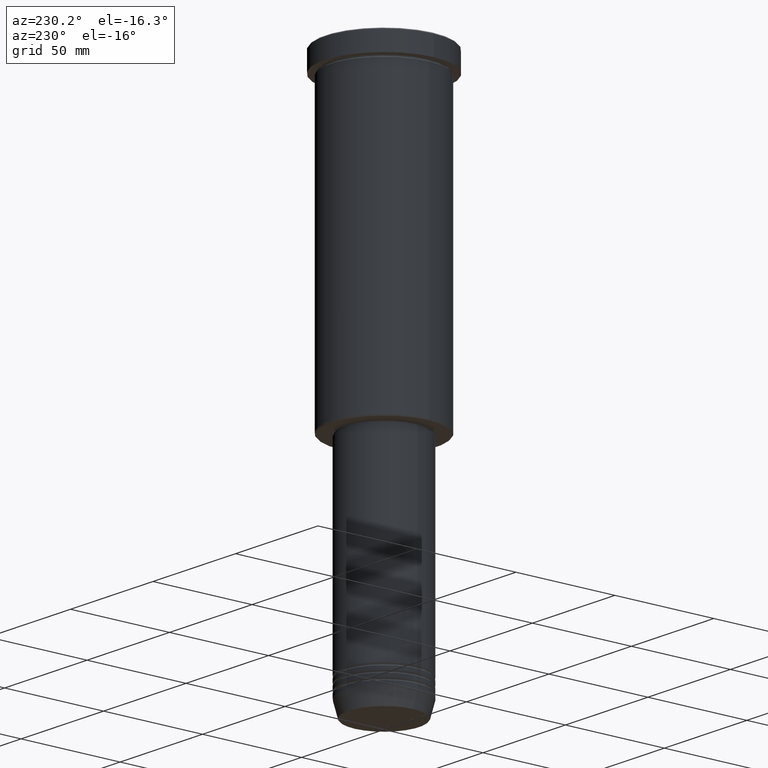
[diagram: clean part render]
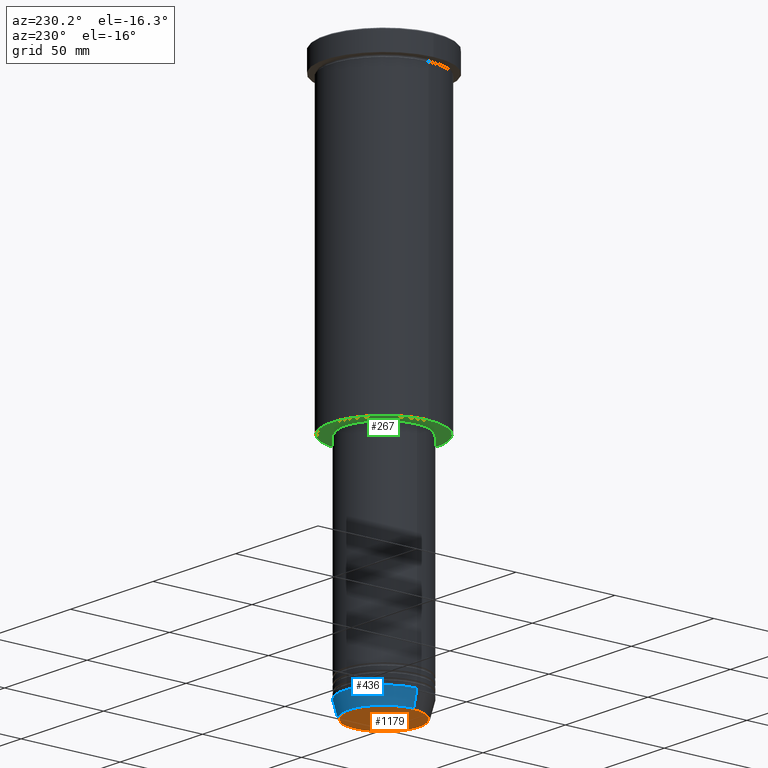
[diagram: same view with three faces highlighted in distinct colors, each labeled with its STEP entity id]
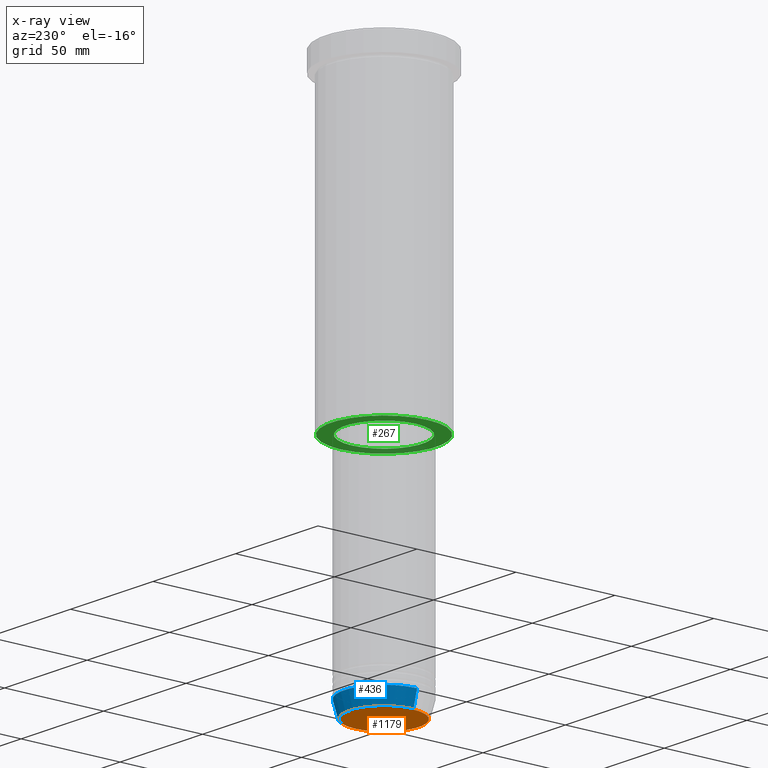
[diagram: x-ray of the same camera — body ghosted, the three highlighted faces saturated]
A machine part, auxiliary view with three faces highlighted in distinct colors.
The next image is the same camera in x-ray (body ghosted, the three faces saturated) — at least one of them is partly hidden behind the body in this view.
Their STEP definitions:

[orange] entity #1179 — the highlighted planar face has unit normal (0, -0, 1).
#90 = AXIS2_PLACEMENT_3D ( 'NONE', #326, #1053, #852 ) ;
#104 = AXIS2_PLACEMENT_3D ( 'NONE', #774, #793, #246 ) ;
#122 = CIRCLE ( 'NONE', #104, 17.47274296656153325 ) ;
#219 = CARTESIAN_POINT ( 'NONE',  ( 17.47274296656153325, 0.000000000000000000, -271.0000000000000000 ) ) ;
#246 = DIRECTION ( 'NONE',  ( 1.000000000000000000, 0.000000000000000000, 0.000000000000000000 ) ) ;
#274 = CIRCLE ( 'NONE', #1013, 17.47274296656153325 ) ;
#295 = EDGE_LOOP ( 'NONE', ( #509, #588 ) ) ;
#320 = FACE_OUTER_BOUND ( 'NONE', #295, .T. ) ;
#326 = CARTESIAN_POINT ( 'NONE',  ( 0.000000000000000000, 0.000000000000000000, -271.0000000000000000 ) ) ;
#340 = EDGE_CURVE ( 'NONE', #1100, #818, #122, .T. ) ;
#430 = EDGE_CURVE ( 'NONE', #818, #1100, #274, .T. ) ;
#509 = ORIENTED_EDGE ( 'NONE', *, *, #430, .T. ) ;
#579 = PLANE ( 'NONE',  #90 ) ;
#588 = ORIENTED_EDGE ( 'NONE', *, *, #340, .T. ) ;
#635 = DIRECTION ( 'NONE',  ( 0.000000000000000000, 0.000000000000000000, -1.000000000000000000 ) ) ;
#774 = CARTESIAN_POINT ( 'NONE',  ( 0.000000000000000000, 0.000000000000000000, -271.0000000000000000 ) ) ;
#793 = DIRECTION ( 'NONE',  ( 0.000000000000000000, 0.000000000000000000, -1.000000000000000000 ) ) ;
#818 = VERTEX_POINT ( 'NONE', #219 ) ;
#852 = DIRECTION ( 'NONE',  ( 1.000000000000000000, 0.000000000000000000, 0.000000000000000000 ) ) ;
#894 = DIRECTION ( 'NONE',  ( 1.000000000000000000, 0.000000000000000000, 0.000000000000000000 ) ) ;
#966 = CARTESIAN_POINT ( 'NONE',  ( 0.000000000000000000, 0.000000000000000000, -271.0000000000000000 ) ) ;
#1011 = CARTESIAN_POINT ( 'NONE',  ( -17.47274296656153325, 2.169366823916868109E-15, -271.0000000000000000 ) ) ;
#1013 = AXIS2_PLACEMENT_3D ( 'NONE', #966, #635, #894 ) ;
#1053 = DIRECTION ( 'NONE',  ( 0.000000000000000000, -0.000000000000000000, 1.000000000000000000 ) ) ;
#1100 = VERTEX_POINT ( 'NONE', #1011 ) ;
#1179 = ADVANCED_FACE ( 'NONE', ( #320 ), #579, .F. ) ;

[blue] entity #436 — the highlighted conical surface has half-angle 15 deg.
#48 = DIRECTION ( 'NONE',  ( 1.000000000000000000, 0.000000000000000000, 0.000000000000000000 ) ) ;
#100 = CARTESIAN_POINT ( 'NONE',  ( -17.95570587970607690, 2.324116685748021371E-15, -270.6294095225512706 ) ) ;
#142 = AXIS2_PLACEMENT_3D ( 'NONE', #907, #344, #814 ) ;
#195 = DIRECTION ( 'NONE',  ( 0.2588190451025212391, 0.000000000000000000, 0.9659258262890680902 ) ) ;
#228 = CARTESIAN_POINT ( 'NONE',  ( 20.00000000000000000, 0.000000000000000000, -263.0000000000000000 ) ) ;
#289 = VERTEX_POINT ( 'NONE', #506 ) ;
#301 = EDGE_CURVE ( 'NONE', #1170, #836, #936, .T. ) ;
#337 = ORIENTED_EDGE ( 'NONE', *, *, #1152, .F. ) ;
#344 = DIRECTION ( 'NONE',  ( -0.000000000000000000, -0.000000000000000000, 1.000000000000000000 ) ) ;
#368 = DIRECTION ( 'NONE',  ( -0.000000000000000000, -0.000000000000000000, 1.000000000000000000 ) ) ;
#375 = LINE ( 'NONE', #646, #1154 ) ;
#406 = ORIENTED_EDGE ( 'NONE', *, *, #895, .T. ) ;
#436 = ADVANCED_FACE ( 'NONE', ( #723 ), #674, .T. ) ;
#438 = CARTESIAN_POINT ( 'NONE',  ( -20.00000000000000000, 2.449293598294706513E-15, -263.0000000000000000 ) ) ;
#504 = CARTESIAN_POINT ( 'NONE',  ( -20.00000000000000000, 2.449293598294706513E-15, -263.0000000000000000 ) ) ;
#506 = CARTESIAN_POINT ( 'NONE',  ( 17.95570587970607690, 0.000000000000000000, -270.6294095225512706 ) ) ;
#522 = ORIENTED_EDGE ( 'NONE', *, *, #301, .F. ) ;
#531 = EDGE_CURVE ( 'NONE', #289, #1037, #844, .T. ) ;
#621 = CARTESIAN_POINT ( 'NONE',  ( 0.000000000000000000, 0.000000000000000000, -263.0000000000000000 ) ) ;
#646 = CARTESIAN_POINT ( 'NONE',  ( 20.00000000000000000, 0.000000000000000000, -263.0000000000000000 ) ) ;
#674 = CONICAL_SURFACE ( 'NONE', #733, 20.00000000000000000, 0.2617993877991499629 ) ;
#692 = AXIS2_PLACEMENT_3D ( 'NONE', #1132, #767, #48 ) ;
#723 = FACE_OUTER_BOUND ( 'NONE', #1040, .T. ) ;
#733 = AXIS2_PLACEMENT_3D ( 'NONE', #621, #368, #1081 ) ;
#767 = DIRECTION ( 'NONE',  ( -0.000000000000000000, -0.000000000000000000, 1.000000000000000000 ) ) ;
#814 = DIRECTION ( 'NONE',  ( 1.000000000000000000, 0.000000000000000000, 0.000000000000000000 ) ) ;
#836 = VERTEX_POINT ( 'NONE', #504 ) ;
#844 = CIRCLE ( 'NONE', #142, 17.95570587970607690 ) ;
#895 = EDGE_CURVE ( 'NONE', #1037, #836, #903, .T. ) ;
#903 = LINE ( 'NONE', #438, #1071 ) ;
#907 = CARTESIAN_POINT ( 'NONE',  ( 0.000000000000000000, 0.000000000000000000, -270.6294095225512706 ) ) ;
#936 = CIRCLE ( 'NONE', #692, 20.00000000000000000 ) ;
#947 = ORIENTED_EDGE ( 'NONE', *, *, #531, .T. ) ;
#986 = DIRECTION ( 'NONE',  ( -0.2588190451025212391, 3.169619151431771721E-17, 0.9659258262890680902 ) ) ;
#1037 = VERTEX_POINT ( 'NONE', #100 ) ;
#1040 = EDGE_LOOP ( 'NONE', ( #947, #406, #522, #337 ) ) ;
#1071 = VECTOR ( 'NONE', #986, 1000.000000000000114 ) ;
#1081 = DIRECTION ( 'NONE',  ( 1.000000000000000000, 0.000000000000000000, 0.000000000000000000 ) ) ;
#1132 = CARTESIAN_POINT ( 'NONE',  ( 0.000000000000000000, 0.000000000000000000, -263.0000000000000000 ) ) ;
#1152 = EDGE_CURVE ( 'NONE', #289, #1170, #375, .T. ) ;
#1154 = VECTOR ( 'NONE', #195, 1000.000000000000114 ) ;
#1170 = VERTEX_POINT ( 'NONE', #228 ) ;

[green] entity #267 — the highlighted planar face has unit normal (0, 0, -1).
#12 = DIRECTION ( 'NONE',  ( -1.000000000000000000, 0.000000000000000000, 0.000000000000000000 ) ) ;
#34 = CARTESIAN_POINT ( 'NONE',  ( 26.50000000000002487, 0.000000000000000000, -156.0000000000000000 ) ) ;
#82 = VERTEX_POINT ( 'NONE', #1141 ) ;
#96 = VERTEX_POINT ( 'NONE', #1156 ) ;
#111 = PLANE ( 'NONE',  #306 ) ;
#144 = DIRECTION ( 'NONE',  ( -1.000000000000000000, 0.000000000000000000, -0.000000000000000000 ) ) ;
#191 = DIRECTION ( 'NONE',  ( 0.000000000000000000, 0.000000000000000000, -1.000000000000000000 ) ) ;
#194 = CARTESIAN_POINT ( 'NONE',  ( -26.50000000000002487, 3.275930187719171524E-15, -156.0000000000000000 ) ) ;
#224 = CARTESIAN_POINT ( 'NONE',  ( 0.000000000000000000, 0.000000000000000000, -156.0000000000000000 ) ) ;
#240 = CARTESIAN_POINT ( 'NONE',  ( 0.000000000000000000, 27.00000000000000355, -156.0000000000000000 ) ) ;
#258 = AXIS2_PLACEMENT_3D ( 'NONE', #224, #419, #583 ) ;
#267 = ADVANCED_FACE ( 'NONE', ( #563, #473 ), #111, .T. ) ;
#272 = CIRCLE ( 'NONE', #730, 19.50000000000000000 ) ;
#279 = CARTESIAN_POINT ( 'NONE',  ( 0.000000000000000000, 0.000000000000000000, -156.0000000000000000 ) ) ;
#280 = ORIENTED_EDGE ( 'NONE', *, *, #363, .T. ) ;
#297 = DIRECTION ( 'NONE',  ( 1.000000000000000000, 0.000000000000000000, 0.000000000000000000 ) ) ;
#306 = AXIS2_PLACEMENT_3D ( 'NONE', #240, #1063, #144 ) ;
#363 = EDGE_CURVE ( 'NONE', #96, #82, #272, .T. ) ;
#372 = CIRCLE ( 'NONE', #580, 19.50000000000000000 ) ;
#419 = DIRECTION ( 'NONE',  ( 0.000000000000000000, 0.000000000000000000, -1.000000000000000000 ) ) ;
#473 = FACE_BOUND ( 'NONE', #763, .T. ) ;
#551 = ORIENTED_EDGE ( 'NONE', *, *, #1136, .T. ) ;
#563 = FACE_OUTER_BOUND ( 'NONE', #703, .T. ) ;
#580 = AXIS2_PLACEMENT_3D ( 'NONE', #279, #739, #297 ) ;
#583 = DIRECTION ( 'NONE',  ( -1.000000000000000000, 0.000000000000000000, 0.000000000000000000 ) ) ;
#613 = DIRECTION ( 'NONE',  ( -0.000000000000000000, -0.000000000000000000, 1.000000000000000000 ) ) ;
#620 = CIRCLE ( 'NONE', #1133, 26.50000000000002487 ) ;
#625 = VERTEX_POINT ( 'NONE', #34 ) ;
#667 = VERTEX_POINT ( 'NONE', #194 ) ;
#703 = EDGE_LOOP ( 'NONE', ( #551, #1080 ) ) ;
#730 = AXIS2_PLACEMENT_3D ( 'NONE', #882, #613, #1043 ) ;
#735 = CIRCLE ( 'NONE', #258, 26.50000000000002487 ) ;
#739 = DIRECTION ( 'NONE',  ( -0.000000000000000000, -0.000000000000000000, 1.000000000000000000 ) ) ;
#751 = EDGE_CURVE ( 'NONE', #667, #625, #735, .T. ) ;
#763 = EDGE_LOOP ( 'NONE', ( #280, #1024 ) ) ;
#882 = CARTESIAN_POINT ( 'NONE',  ( 0.000000000000000000, 0.000000000000000000, -156.0000000000000000 ) ) ;
#920 = CARTESIAN_POINT ( 'NONE',  ( 0.000000000000000000, 0.000000000000000000, -156.0000000000000000 ) ) ;
#1024 = ORIENTED_EDGE ( 'NONE', *, *, #1106, .T. ) ;
#1043 = DIRECTION ( 'NONE',  ( 1.000000000000000000, 0.000000000000000000, 0.000000000000000000 ) ) ;
#1063 = DIRECTION ( 'NONE',  ( 0.000000000000000000, 0.000000000000000000, -1.000000000000000000 ) ) ;
#1080 = ORIENTED_EDGE ( 'NONE', *, *, #751, .T. ) ;
#1106 = EDGE_CURVE ( 'NONE', #82, #96, #372, .T. ) ;
#1133 = AXIS2_PLACEMENT_3D ( 'NONE', #920, #191, #12 ) ;
#1136 = EDGE_CURVE ( 'NONE', #625, #667, #620, .T. ) ;
#1141 = CARTESIAN_POINT ( 'NONE',  ( -19.50000000000000000, 2.388061258337338939E-15, -156.0000000000000000 ) ) ;
#1156 = CARTESIAN_POINT ( 'NONE',  ( 19.50000000000000000, 0.000000000000000000, -156.0000000000000000 ) ) ;